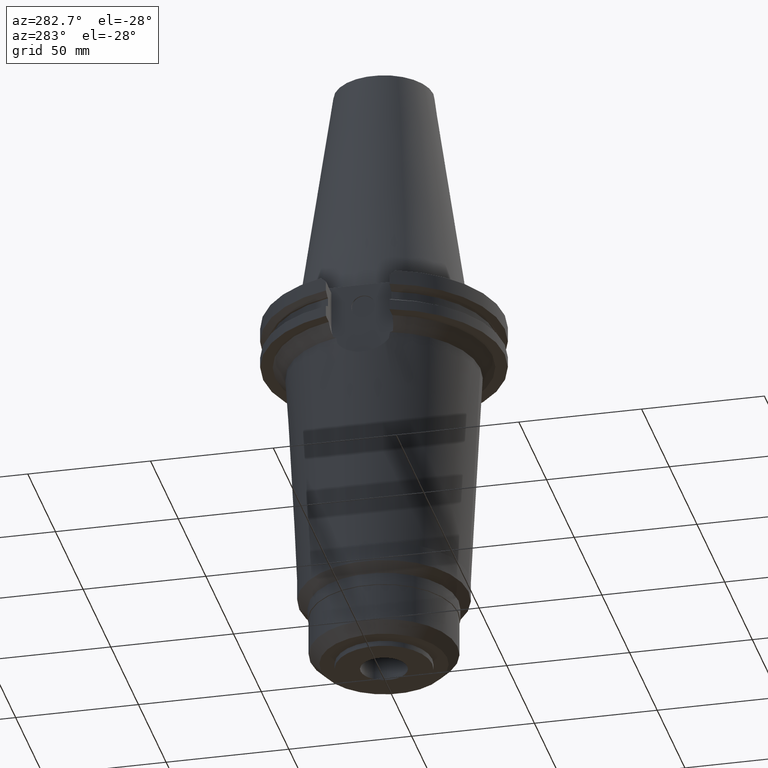
[diagram: clean part render]
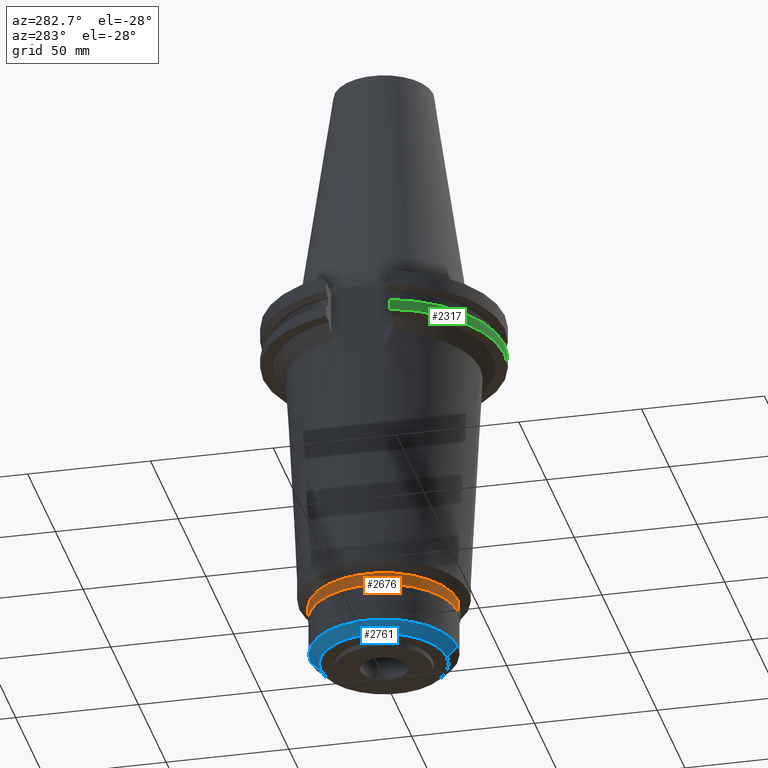
[diagram: same view with three faces highlighted in distinct colors, each labeled with its STEP entity id]
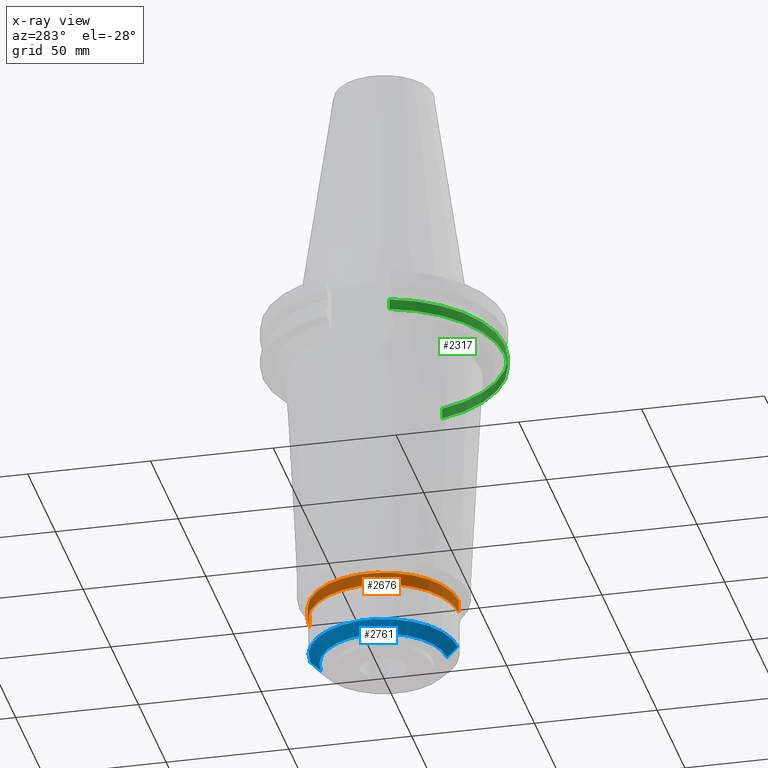
[diagram: x-ray of the same camera — body ghosted, the three highlighted faces saturated]
A machine part, auxiliary view with three faces highlighted in distinct colors.
The next image is the same camera in x-ray (body ghosted, the three faces saturated) — at least one of them is partly hidden behind the body in this view.
Their STEP definitions:

[orange] entity #2676 — the highlighted cylindrical surface (partial cylindrical patch) has radius 30.35 mm, axis along (0, 0, -1).
#1186=CARTESIAN_POINT('',(0.E0,-1.541566899785E-14,-1.276569801935E2));
#1187=DIRECTION('',(0.E0,0.E0,-1.E0));
#1188=DIRECTION('',(0.E0,-1.E0,0.E0));
#1189=AXIS2_PLACEMENT_3D('',#1186,#1187,#1188);
#1194=DIRECTION('',(0.E0,-3.340629435045E-12,-1.E0));
#1195=VECTOR('',#1194,5.143019806520E0);
#1196=CARTESIAN_POINT('',(0.E0,-3.034999999998E1,-1.276569801935E2));
#1197=LINE('',#1196,#1195);
#1201=DIRECTION('',(0.E0,3.342011002222E-12,-1.E0));
#1202=VECTOR('',#1201,5.143019806520E0);
#1203=CARTESIAN_POINT('',(0.E0,3.034999999998E1,-1.276569801935E2));
#1204=LINE('',#1203,#1202);
#1216=CARTESIAN_POINT('',(0.E0,1.401240867584E-14,-1.328E2));
#1217=DIRECTION('',(0.E0,0.E0,1.E0));
#1218=DIRECTION('',(0.E0,1.E0,0.E0));
#1219=AXIS2_PLACEMENT_3D('',#1216,#1217,#1218);
#1658=CARTESIAN_POINT('',(0.E0,-3.035E1,-1.328E2));
#1659=CARTESIAN_POINT('',(0.E0,3.035E1,-1.328E2));
#1660=VERTEX_POINT('',#1658);
#1661=VERTEX_POINT('',#1659);
#1662=CARTESIAN_POINT('',(0.E0,3.034999999998E1,-1.276569801935E2));
#1663=VERTEX_POINT('',#1662);
#1664=CARTESIAN_POINT('',(0.E0,-3.034999999998E1,-1.276569801935E2));
#1665=VERTEX_POINT('',#1664);
#2662=CARTESIAN_POINT('',(0.E0,1.401240867584E-14,1.1442E2));
#2663=DIRECTION('',(0.E0,0.E0,-1.E0));
#2664=DIRECTION('',(0.E0,-1.E0,0.E0));
#2665=AXIS2_PLACEMENT_3D('',#2662,#2663,#2664);
#2666=CYLINDRICAL_SURFACE('',#2665,3.035E1);
#2668=ORIENTED_EDGE('',*,*,#2667,.F.);
#2669=ORIENTED_EDGE('',*,*,#2657,.F.);
#2671=ORIENTED_EDGE('',*,*,#2670,.T.);
#2673=ORIENTED_EDGE('',*,*,#2672,.F.);
#2674=EDGE_LOOP('',(#2668,#2669,#2671,#2673));
#2675=FACE_OUTER_BOUND('',#2674,.F.);
#1190=CIRCLE('',#1189,3.034999999997E1);
#1220=CIRCLE('',#1219,3.035E1);
#2657=EDGE_CURVE('',#1665,#1663,#1190,.T.);
#2667=EDGE_CURVE('',#1663,#1661,#1204,.T.);
#2670=EDGE_CURVE('',#1665,#1660,#1197,.T.);
#2672=EDGE_CURVE('',#1661,#1660,#1220,.T.);
#2676=ADVANCED_FACE('',(#2675),#2666,.T.);

[blue] entity #2761 — the highlighted conical surface has half-angle 45 deg.
#1254=DIRECTION('',(0.E0,-7.071067811866E-1,-7.071067811865E-1));
#1255=VECTOR('',#1254,6.081118318204E0);
#1256=CARTESIAN_POINT('',(0.E0,3.E1,-1.483E2));
#1257=LINE('',#1256,#1255);
#1269=CARTESIAN_POINT('',(0.E0,-1.842481109317E-14,-1.483E2));
#1270=DIRECTION('',(0.E0,0.E0,1.E0));
#1271=DIRECTION('',(0.E0,1.E0,0.E0));
#1272=AXIS2_PLACEMENT_3D('',#1269,#1270,#1271);
#1277=DIRECTION('',(0.E0,7.071067811866E-1,-7.071067811865E-1));
#1278=VECTOR('',#1277,6.081118318204E0);
#1279=CARTESIAN_POINT('',(0.E0,-3.E1,-1.483E2));
#1280=LINE('',#1279,#1278);
#1292=CARTESIAN_POINT('',(0.E0,-1.842481109317E-14,-1.526E2));
#1293=DIRECTION('',(0.E0,0.E0,1.E0));
#1294=DIRECTION('',(0.E0,1.E0,0.E0));
#1295=AXIS2_PLACEMENT_3D('',#1292,#1293,#1294);
#1646=CARTESIAN_POINT('',(0.E0,-2.57E1,-1.526E2));
#1647=CARTESIAN_POINT('',(0.E0,2.57E1,-1.526E2));
#1648=VERTEX_POINT('',#1646);
#1649=VERTEX_POINT('',#1647);
#1650=CARTESIAN_POINT('',(0.E0,3.E1,-1.483E2));
#1651=VERTEX_POINT('',#1650);
#1652=CARTESIAN_POINT('',(0.E0,-3.E1,-1.483E2));
#1653=VERTEX_POINT('',#1652);
#2749=CARTESIAN_POINT('',(0.E0,-1.842481109317E-14,-1.5045E2));
#2750=DIRECTION('',(0.E0,0.E0,1.E0));
#2751=DIRECTION('',(0.E0,1.E0,0.E0));
#2752=AXIS2_PLACEMENT_3D('',#2749,#2750,#2751);
#2753=CONICAL_SURFACE('',#2752,2.785E1,4.5E1);
#2754=ORIENTED_EDGE('',*,*,#2739,.F.);
#2755=ORIENTED_EDGE('',*,*,#2716,.T.);
#2756=ORIENTED_EDGE('',*,*,#2743,.T.);
#2758=ORIENTED_EDGE('',*,*,#2757,.F.);
#2759=EDGE_LOOP('',(#2754,#2755,#2756,#2758));
#2760=FACE_OUTER_BOUND('',#2759,.F.);
#1273=CIRCLE('',#1272,3.E1);
#1296=CIRCLE('',#1295,2.57E1);
#2716=EDGE_CURVE('',#1651,#1653,#1273,.T.);
#2739=EDGE_CURVE('',#1651,#1649,#1257,.T.);
#2743=EDGE_CURVE('',#1653,#1648,#1280,.T.);
#2757=EDGE_CURVE('',#1649,#1648,#1296,.T.);
#2761=ADVANCED_FACE('',(#2760),#2753,.T.);

[green] entity #2317 — the highlighted cylindrical surface (partial cylindrical patch) has radius 49.2125 mm, axis along (0, 0, -1).
#650=CARTESIAN_POINT('',(0.E0,1.401240867584E-14,-1.905E1));
#651=DIRECTION('',(0.E0,0.E0,1.E0));
#652=DIRECTION('',(-9.647287063661E-1,-2.632461264923E-1,0.E0));
#653=AXIS2_PLACEMENT_3D('',#650,#651,#652);
#658=CARTESIAN_POINT('',(0.E0,1.401240867584E-14,-1.905E1));
#659=DIRECTION('',(0.E0,0.E0,1.E0));
#660=DIRECTION('',(0.E0,-1.E0,0.E0));
#661=AXIS2_PLACEMENT_3D('',#658,#659,#660);
#666=DIRECTION('',(-1.228324721565E-13,4.767839379758E-14,-1.E0));
#667=VECTOR('',#666,4.396333230921E0);
#668=CARTESIAN_POINT('',(4.747671146204E1,-1.2955E1,-1.465366676908E1));
#669=LINE('',#668,#667);
#673=DIRECTION('',(-1.341459893288E-13,-4.727433961285E-14,1.E0));
#674=VECTOR('',#673,4.396333230921E0);
#675=CARTESIAN_POINT('',(-4.747671146204E1,-1.2955E1,-1.905E1));
#676=LINE('',#675,#674);
#690=CARTESIAN_POINT('',(0.E0,0.E0,-1.465366676908E1));
#691=DIRECTION('',(0.E0,0.E0,-1.E0));
#692=DIRECTION('',(9.647287063661E-1,-2.632461264923E-1,0.E0));
#693=AXIS2_PLACEMENT_3D('',#690,#691,#692);
#698=CARTESIAN_POINT('',(0.E0,0.E0,-1.465366676908E1));
#699=DIRECTION('',(0.E0,0.E0,-1.E0));
#700=DIRECTION('',(0.E0,-1.E0,0.E0));
#701=AXIS2_PLACEMENT_3D('',#698,#699,#700);
#1755=CARTESIAN_POINT('',(4.747671146204E1,-1.2955E1,-1.905E1));
#1756=VERTEX_POINT('',#1755);
#1757=CARTESIAN_POINT('',(4.747671146204E1,-1.2955E1,-1.465366676908E1));
#1758=VERTEX_POINT('',#1757);
#1821=CARTESIAN_POINT('',(0.E0,-4.92125E1,-1.465366676908E1));
#1822=VERTEX_POINT('',#1821);
#1823=CARTESIAN_POINT('',(-4.747671146204E1,-1.2955E1,-1.465366676908E1));
#1824=VERTEX_POINT('',#1823);
#1828=CARTESIAN_POINT('',(0.E0,-4.92125E1,-1.905E1));
#1829=VERTEX_POINT('',#1828);
#1830=CARTESIAN_POINT('',(-4.747671146204E1,-1.2955E1,-1.905E1));
#1831=VERTEX_POINT('',#1830);
#2302=CARTESIAN_POINT('',(0.E0,1.401240867584E-14,1.1442E2));
#2303=DIRECTION('',(0.E0,0.E0,-1.E0));
#2304=DIRECTION('',(0.E0,-1.E0,0.E0));
#2305=AXIS2_PLACEMENT_3D('',#2302,#2303,#2304);
#2306=CYLINDRICAL_SURFACE('',#2305,4.92125E1);
#2307=ORIENTED_EDGE('',*,*,#2207,.T.);
#2308=ORIENTED_EDGE('',*,*,#2297,.F.);
#2309=ORIENTED_EDGE('',*,*,#2295,.F.);
#2310=ORIENTED_EDGE('',*,*,#2281,.T.);
#2312=ORIENTED_EDGE('',*,*,#2311,.F.);
#2314=ORIENTED_EDGE('',*,*,#2313,.F.);
#2315=EDGE_LOOP('',(#2307,#2308,#2309,#2310,#2312,#2314));
#2316=FACE_OUTER_BOUND('',#2315,.F.);
#654=CIRCLE('',#653,4.92125E1);
#662=CIRCLE('',#661,4.92125E1);
#694=CIRCLE('',#693,4.92125E1);
#702=CIRCLE('',#701,4.92125E1);
#2207=EDGE_CURVE('',#1758,#1756,#669,.T.);
#2281=EDGE_CURVE('',#1831,#1824,#676,.T.);
#2295=EDGE_CURVE('',#1831,#1829,#654,.T.);
#2297=EDGE_CURVE('',#1829,#1756,#662,.T.);
#2311=EDGE_CURVE('',#1822,#1824,#702,.T.);
#2313=EDGE_CURVE('',#1758,#1822,#694,.T.);
#2317=ADVANCED_FACE('',(#2316),#2306,.T.);